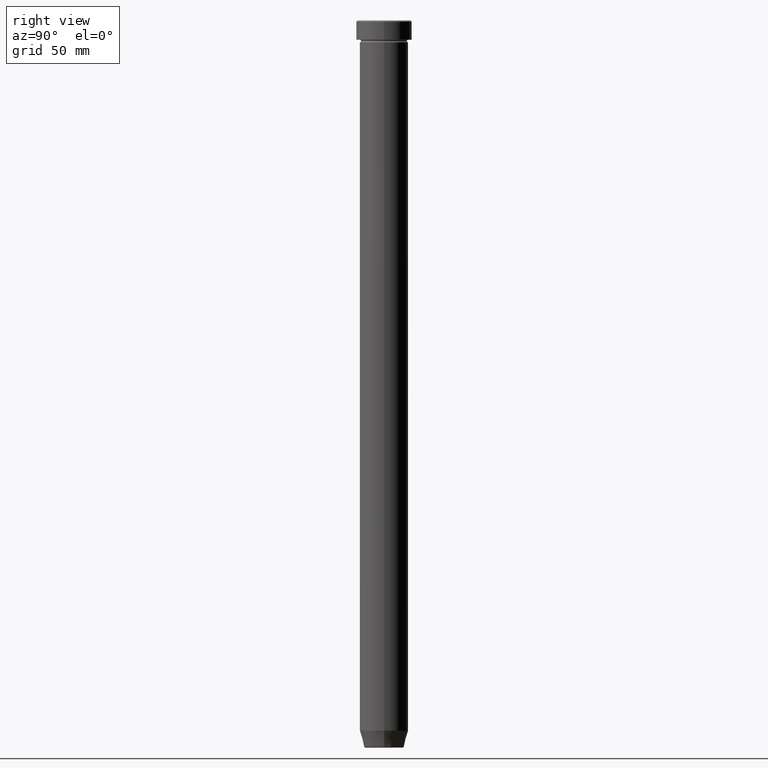
[diagram: clean part render]
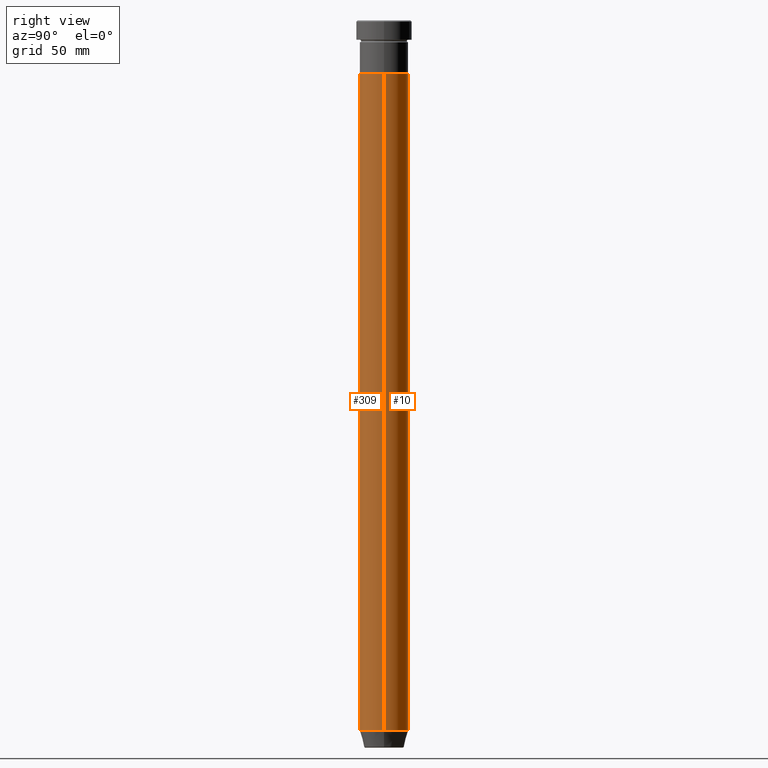
[diagram: same view with one multi-face feature highlighted, each face labeled with its STEP entity id]
A machine part, right view. The highlighted faces form ONE feature: a constant-radius fillet chain: 2 tangent blend faces with common blend radius 10 mm. The faces share edges in the B-rep.
Their STEP definitions:
[1] entity #10 (Cylinder):
#10 = ADVANCED_FACE ( 'NONE', ( #159 ), #224, .T. ) ;
#48 = ORIENTED_EDGE ( 'NONE', *, *, #441, .F. ) ;
#85 = DIRECTION ( 'NONE',  ( -0.000000000000000000, -0.000000000000000000, 1.000000000000000000 ) ) ;
#114 = CARTESIAN_POINT ( 'NONE',  ( 0.000000000000000000, 0.000000000000000000, 0.000000000000000000 ) ) ;
#116 = CARTESIAN_POINT ( 'NONE',  ( -9.999999999999998224, 1.224646799147353059E-15, 0.000000000000000000 ) ) ;
#122 = DIRECTION ( 'NONE',  ( 1.000000000000000000, 0.000000000000000000, 0.000000000000000000 ) ) ;
#159 = FACE_OUTER_BOUND ( 'NONE', #286, .T. ) ;
#183 = ORIENTED_EDGE ( 'NONE', *, *, #353, .T. ) ;
#191 = AXIS2_PLACEMENT_3D ( 'NONE', #114, #541, #428 ) ;
#224 = CYLINDRICAL_SURFACE ( 'NONE', #191, 9.999999999999998224 ) ;
#232 = ORIENTED_EDGE ( 'NONE', *, *, #254, .T. ) ;
#251 = DIRECTION ( 'NONE',  ( -0.000000000000000000, -0.000000000000000000, 1.000000000000000000 ) ) ;
#254 = EDGE_CURVE ( 'NONE', #324, #358, #305, .T. ) ;
#267 = AXIS2_PLACEMENT_3D ( 'NONE', #355, #539, #122 ) ;
#269 = DIRECTION ( 'NONE',  ( -0.000000000000000000, -0.000000000000000000, 1.000000000000000000 ) ) ;
#286 = EDGE_LOOP ( 'NONE', ( #232, #183, #599, #48 ) ) ;
#305 = CIRCLE ( 'NONE', #516, 9.999999999999998224 ) ;
#312 = CARTESIAN_POINT ( 'NONE',  ( 9.999999999999998224, 0.000000000000000000, -293.0000000000000568 ) ) ;
#324 = VERTEX_POINT ( 'NONE', #312 ) ;
#353 = EDGE_CURVE ( 'NONE', #358, #490, #359, .T. ) ;
#355 = CARTESIAN_POINT ( 'NONE',  ( 0.000000000000000000, 0.000000000000000000, -22.00000000000000000 ) ) ;
#356 = CARTESIAN_POINT ( 'NONE',  ( -9.999999999999998224, 1.224646799147353059E-15, -293.0000000000000568 ) ) ;
#358 = VERTEX_POINT ( 'NONE', #356 ) ;
#359 = LINE ( 'NONE', #116, #457 ) ;
#362 = VECTOR ( 'NONE', #85, 1000.000000000000000 ) ;
#400 = CIRCLE ( 'NONE', #267, 10.00000000000000000 ) ;
#414 = CARTESIAN_POINT ( 'NONE',  ( -10.00000000000000000, 1.224646799147353256E-15, -22.00000000000000000 ) ) ;
#428 = DIRECTION ( 'NONE',  ( 1.000000000000000000, 0.000000000000000000, 0.000000000000000000 ) ) ;
#436 = EDGE_CURVE ( 'NONE', #501, #490, #400, .T. ) ;
#441 = EDGE_CURVE ( 'NONE', #324, #501, #498, .T. ) ;
#452 = CARTESIAN_POINT ( 'NONE',  ( 9.999999999999998224, 0.000000000000000000, 0.000000000000000000 ) ) ;
#457 = VECTOR ( 'NONE', #269, 1000.000000000000000 ) ;
#473 = DIRECTION ( 'NONE',  ( 1.000000000000000000, 0.000000000000000000, 0.000000000000000000 ) ) ;
#490 = VERTEX_POINT ( 'NONE', #414 ) ;
#498 = LINE ( 'NONE', #452, #362 ) ;
#501 = VERTEX_POINT ( 'NONE', #597 ) ;
#516 = AXIS2_PLACEMENT_3D ( 'NONE', #521, #251, #473 ) ;
#521 = CARTESIAN_POINT ( 'NONE',  ( 0.000000000000000000, 0.000000000000000000, -293.0000000000000568 ) ) ;
#539 = DIRECTION ( 'NONE',  ( -0.000000000000000000, -0.000000000000000000, 1.000000000000000000 ) ) ;
#541 = DIRECTION ( 'NONE',  ( -0.000000000000000000, -0.000000000000000000, 1.000000000000000000 ) ) ;
#597 = CARTESIAN_POINT ( 'NONE',  ( 10.00000000000000000, 0.000000000000000000, -22.00000000000000000 ) ) ;
#599 = ORIENTED_EDGE ( 'NONE', *, *, #436, .F. ) ;
[2] entity #309 (Cylinder):
#28 = AXIS2_PLACEMENT_3D ( 'NONE', #509, #378, #178 ) ;
#53 = ORIENTED_EDGE ( 'NONE', *, *, #441, .T. ) ;
#67 = AXIS2_PLACEMENT_3D ( 'NONE', #271, #125, #87 ) ;
#73 = EDGE_CURVE ( 'NONE', #358, #324, #228, .T. ) ;
#85 = DIRECTION ( 'NONE',  ( -0.000000000000000000, -0.000000000000000000, 1.000000000000000000 ) ) ;
#87 = DIRECTION ( 'NONE',  ( 1.000000000000000000, 0.000000000000000000, 0.000000000000000000 ) ) ;
#116 = CARTESIAN_POINT ( 'NONE',  ( -9.999999999999998224, 1.224646799147353059E-15, 0.000000000000000000 ) ) ;
#125 = DIRECTION ( 'NONE',  ( -0.000000000000000000, -0.000000000000000000, 1.000000000000000000 ) ) ;
#145 = ORIENTED_EDGE ( 'NONE', *, *, #510, .F. ) ;
#178 = DIRECTION ( 'NONE',  ( 1.000000000000000000, 0.000000000000000000, 0.000000000000000000 ) ) ;
#188 = ORIENTED_EDGE ( 'NONE', *, *, #73, .T. ) ;
#208 = FACE_OUTER_BOUND ( 'NONE', #277, .T. ) ;
#216 = DIRECTION ( 'NONE',  ( 1.000000000000000000, 0.000000000000000000, 0.000000000000000000 ) ) ;
#228 = CIRCLE ( 'NONE', #67, 9.999999999999998224 ) ;
#257 = CARTESIAN_POINT ( 'NONE',  ( 0.000000000000000000, 0.000000000000000000, 0.000000000000000000 ) ) ;
#269 = DIRECTION ( 'NONE',  ( -0.000000000000000000, -0.000000000000000000, 1.000000000000000000 ) ) ;
#271 = CARTESIAN_POINT ( 'NONE',  ( 0.000000000000000000, 0.000000000000000000, -293.0000000000000568 ) ) ;
#277 = EDGE_LOOP ( 'NONE', ( #551, #188, #53, #145 ) ) ;
#302 = DIRECTION ( 'NONE',  ( -0.000000000000000000, -0.000000000000000000, 1.000000000000000000 ) ) ;
#306 = CYLINDRICAL_SURFACE ( 'NONE', #385, 9.999999999999998224 ) ;
#309 = ADVANCED_FACE ( 'NONE', ( #208 ), #306, .T. ) ;
#312 = CARTESIAN_POINT ( 'NONE',  ( 9.999999999999998224, 0.000000000000000000, -293.0000000000000568 ) ) ;
#324 = VERTEX_POINT ( 'NONE', #312 ) ;
#353 = EDGE_CURVE ( 'NONE', #358, #490, #359, .T. ) ;
#356 = CARTESIAN_POINT ( 'NONE',  ( -9.999999999999998224, 1.224646799147353059E-15, -293.0000000000000568 ) ) ;
#358 = VERTEX_POINT ( 'NONE', #356 ) ;
#359 = LINE ( 'NONE', #116, #457 ) ;
#362 = VECTOR ( 'NONE', #85, 1000.000000000000000 ) ;
#378 = DIRECTION ( 'NONE',  ( -0.000000000000000000, -0.000000000000000000, 1.000000000000000000 ) ) ;
#385 = AXIS2_PLACEMENT_3D ( 'NONE', #257, #302, #216 ) ;
#410 = CIRCLE ( 'NONE', #28, 10.00000000000000000 ) ;
#414 = CARTESIAN_POINT ( 'NONE',  ( -10.00000000000000000, 1.224646799147353256E-15, -22.00000000000000000 ) ) ;
#441 = EDGE_CURVE ( 'NONE', #324, #501, #498, .T. ) ;
#452 = CARTESIAN_POINT ( 'NONE',  ( 9.999999999999998224, 0.000000000000000000, 0.000000000000000000 ) ) ;
#457 = VECTOR ( 'NONE', #269, 1000.000000000000000 ) ;
#490 = VERTEX_POINT ( 'NONE', #414 ) ;
#498 = LINE ( 'NONE', #452, #362 ) ;
#501 = VERTEX_POINT ( 'NONE', #597 ) ;
#509 = CARTESIAN_POINT ( 'NONE',  ( 0.000000000000000000, 0.000000000000000000, -22.00000000000000000 ) ) ;
#510 = EDGE_CURVE ( 'NONE', #490, #501, #410, .T. ) ;
#551 = ORIENTED_EDGE ( 'NONE', *, *, #353, .F. ) ;
#597 = CARTESIAN_POINT ( 'NONE',  ( 10.00000000000000000, 0.000000000000000000, -22.00000000000000000 ) ) ;